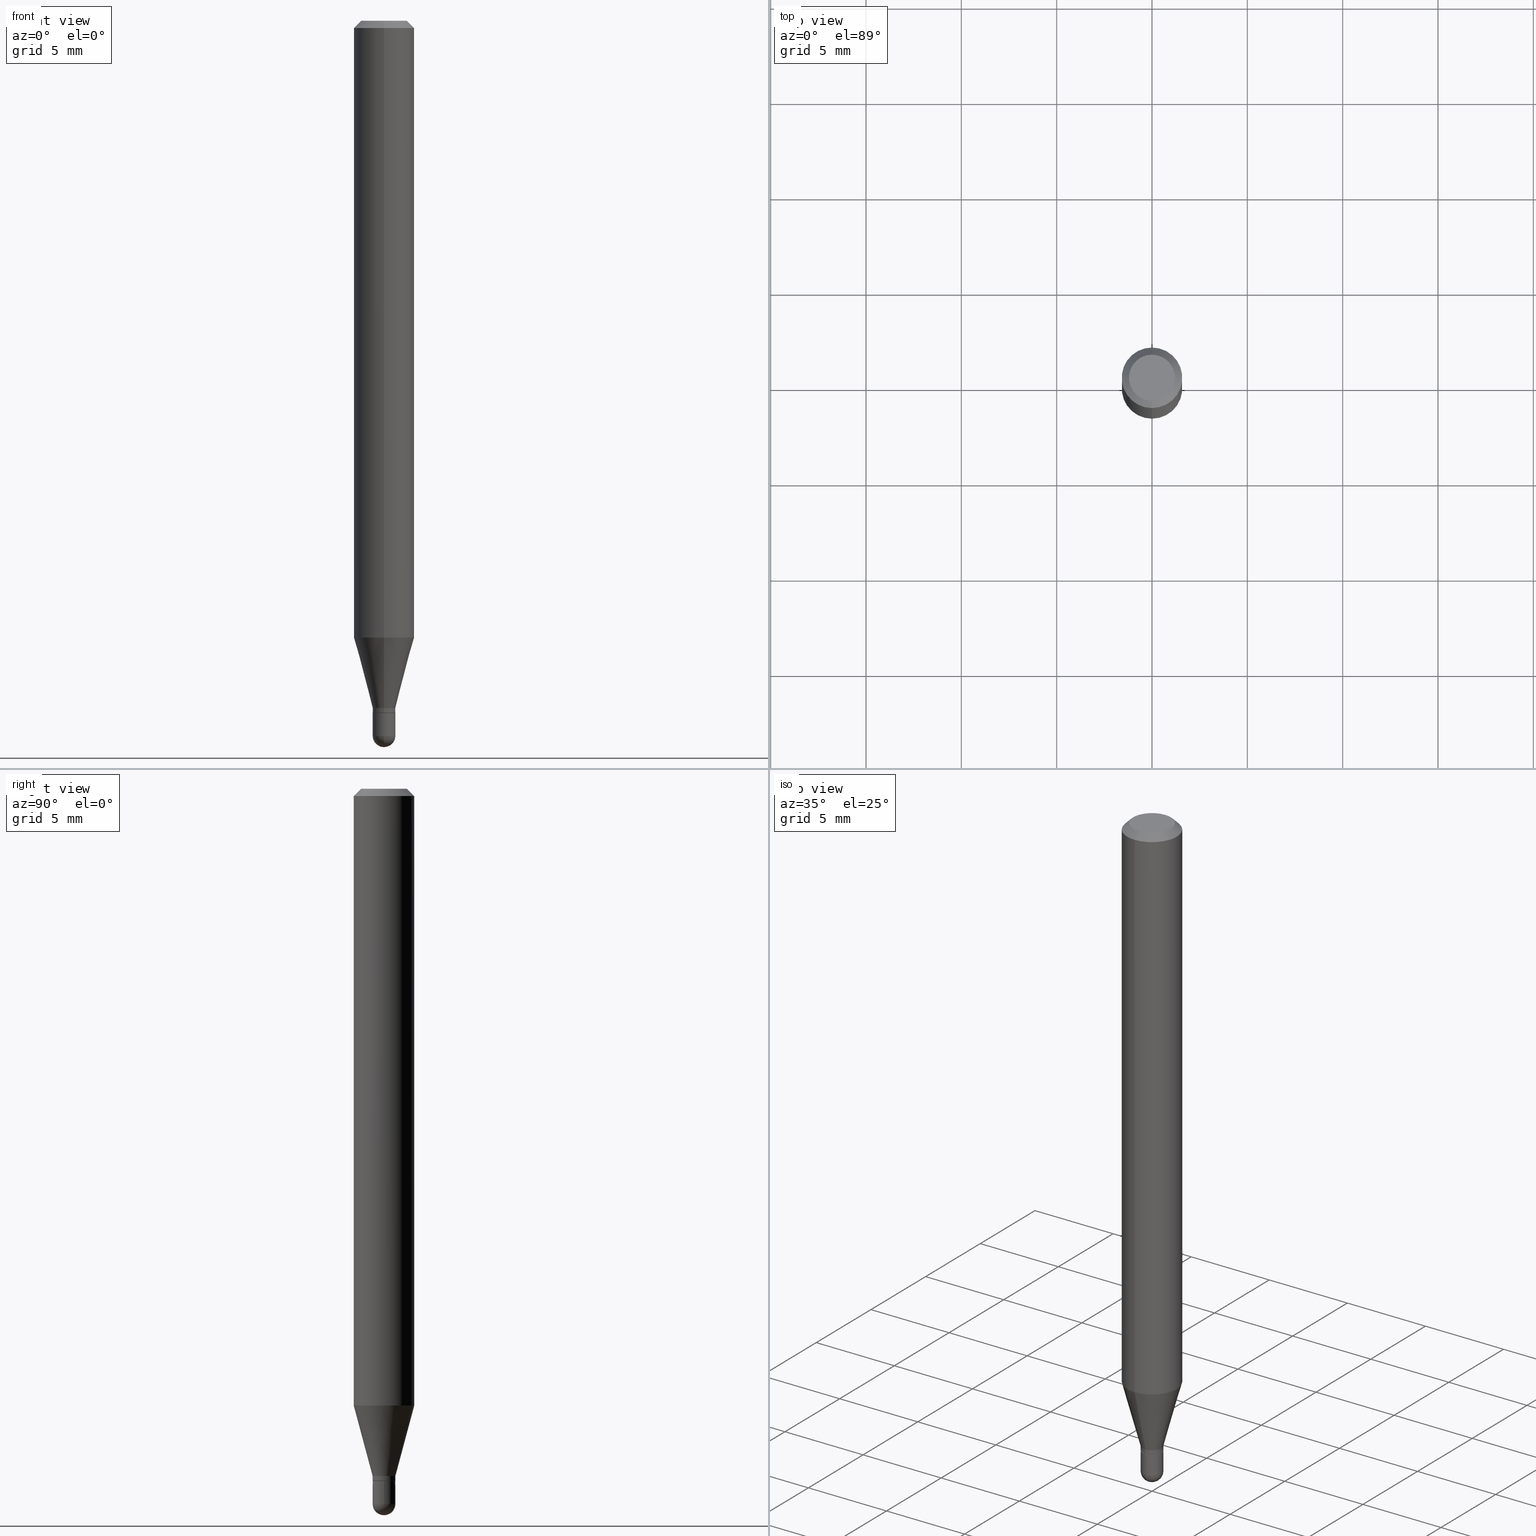
[diagram: canonical four-view strip — front | top / right | iso, engineering-drawing reading convention]
A machine part, canonical four-view strip (front | top / right | iso — engineering-drawing reading convention). The complete STEP part file that produces these views, byte-faithful:
ISO-10303-21;
HEADER;
FILE_DESCRIPTION (( 'STEP AP203' ),
    '1' );
FILE_NAME ('00711.STEP',
    '2024-03-07T18:05:18',
    ( '' ),
    ( '' ),
    'SwSTEP 2.0',
    'SolidWorks 2023',
    '' );
FILE_SCHEMA (( 'CONFIG_CONTROL_DESIGN' ));
ENDSEC;

DATA;
#1 = ORIENTED_EDGE ( 'NONE', *, *, #264, .F. ) ;
#2 = CALENDAR_DATE ( 2024, 7, 3 ) ;
#3 = CARTESIAN_POINT ( 'NONE',  ( 3.840629472727447874E-16, 0.04749999999999999362, -1.747056831868805136E-16 ) ) ;
#4 = DATE_AND_TIME ( #119, #289 ) ;
#5 = DIRECTION ( 'NONE',  ( -2.445455239514301425E-29, 3.491500767087948658E-15, 1.000000000000000000 ) ) ;
#6 = CIRCLE ( 'NONE', #202, 0.02299999999999999961 ) ;
#7 = AXIS2_PLACEMENT_3D ( 'NONE', #145, #105, #147 ) ;
#8 = DATE_AND_TIME ( #2, #228 ) ;
#9 = CARTESIAN_POINT ( 'NONE',  ( -3.773273898774340269E-16, -0.04749999999999999362, 1.569868896864746099E-16 ) ) ;
#10 = DIRECTION ( 'NONE',  ( -2.445455239514301425E-29, 3.491500767087948658E-15, 1.000000000000000000 ) ) ;
#11 = ADVANCED_FACE ( 'NONE', ( #311 ), #115, .T. ) ;
#12 = AXIS2_PLACEMENT_3D ( 'NONE', #163, #40, #122 ) ;
#13 = AXIS2_PLACEMENT_3D ( 'NONE', #25, #345, #501 ) ;
#14 = CYLINDRICAL_SURFACE ( 'NONE', #478, 0.06250000000000000000 ) ;
#15 = ORIENTED_EDGE ( 'NONE', *, *, #333, .F. ) ;
#16 = PRODUCT_DEFINITION ( 'UNKNOWN', '', #46, #400 ) ;
#17 = LINE ( 'NONE', #19, #410 ) ;
#18 = ORIENTED_EDGE ( 'NONE', *, *, #406, .F. ) ;
#19 = CARTESIAN_POINT ( 'NONE',  ( -4.364351673553916201E-16, -0.06250000000000000000, 2.182187979429967912E-16 ) ) ;
#20 = EDGE_CURVE ( 'NONE', #134, #387, #468, .T. ) ;
#21 = AXIS2_PLACEMENT_3D ( 'NONE', #388, #383, #463 ) ;
#22 = CARTESIAN_POINT ( 'NONE',  ( 3.610734692332355557E-29, -5.155172196801905931E-15, -1.476500000000000590 ) ) ;
#23 = CC_DESIGN_PERSON_AND_ORGANIZATION_ASSIGNMENT ( #240, #279, ( #46 ) ) ;
#24 = DIRECTION ( 'NONE',  ( -2.445455239514301425E-29, 3.491500767087948658E-15, 1.000000000000000000 ) ) ;
#25 = CARTESIAN_POINT ( 'NONE',  ( 3.470100984870794187E-29, -4.954439588497799171E-15, -1.419000000000000039 ) ) ;
#26 = ORIENTED_EDGE ( 'NONE', *, *, #215, .F. ) ;
#27 = ADVANCED_FACE ( 'NONE', ( #49 ), #354, .F. ) ;
#28 = DIRECTION ( 'NONE',  ( 2.438088387897960049E-29, -3.491481338843145188E-15, -1.000000000000000000 ) ) ;
#29 = CIRCLE ( 'NONE', #118, 0.02350000000000000352 ) ;
#30 = EDGE_LOOP ( 'NONE', ( #462, #467, #18, #234 ) ) ;
#31 = DIRECTION ( 'NONE',  ( 1.000000000000000000, -6.982962677686265922E-15, 4.883557194083112340E-29 ) ) ;
#32 = ORIENTED_EDGE ( 'NONE', *, *, #20, .T. ) ;
#33 = DIRECTION ( 'NONE',  ( -2.445468806185136597E-29, 3.491481338843145583E-15, 1.000000000000000000 ) ) ;
#34 = ORIENTED_EDGE ( 'NONE', *, *, #333, .T. ) ;
#35 =( LENGTH_UNIT ( ) NAMED_UNIT ( * ) SI_UNIT ( $, .METRE. ) );
#36 = ORIENTED_EDGE ( 'NONE', *, *, #68, .F. ) ;
#37 = VECTOR ( 'NONE', #331, 39.37007874015748143 ) ;
#38 = EDGE_CURVE ( 'NONE', #496, #134, #434, .T. ) ;
#39 = VECTOR ( 'NONE', #347, 39.37007874015748143 ) ;
#40 = DIRECTION ( 'NONE',  ( -2.445455239514301425E-29, 3.491500767087948658E-15, 1.000000000000000000 ) ) ;
#41 = PERSON_AND_ORGANIZATION ( #339, #178 ) ;
#42 = DIRECTION ( 'NONE',  ( -2.445455239514301425E-29, 3.491500767087948658E-15, 1.000000000000000000 ) ) ;
#43 = ADVANCED_FACE ( 'NONE', ( #272 ), #277, .T. ) ;
#44 = DIRECTION ( 'NONE',  ( -6.982962677686266711E-15, -1.000000000000000000, 0.000000000000000000 ) ) ;
#45 = CIRCLE ( 'NONE', #332, 0.02349999999999992373 ) ;
#46 = PRODUCT_DEFINITION_FORMATION_WITH_SPECIFIED_SOURCE ( 'ANY', '', #364, .NOT_KNOWN. ) ;
#47 = PERSON_AND_ORGANIZATION_ROLE ( 'design_supplier' ) ;
#48 = ADVANCED_FACE ( 'NONE', ( #432 ), #404, .T. ) ;
#49 = FACE_OUTER_BOUND ( 'NONE', #65, .T. ) ;
#50 = APPLICATION_CONTEXT ( 'configuration controlled 3d designs of mechanical parts and assemblies' ) ;
#51 = DIRECTION ( 'NONE',  ( 1.839019923739601104E-15, 0.2588190451025250693, 0.9659258262890670910 ) ) ;
#52 = EDGE_CURVE ( 'NONE', #496, #346, #210, .T. ) ;
#53 = CARTESIAN_POINT ( 'NONE',  ( 3.668182859271454205E-31, -5.237251150631926020E-17, -0.01500000000000000812 ) ) ;
#54 = AXIS2_PLACEMENT_3D ( 'NONE', #438, #206, #363 ) ;
#55 = DIRECTION ( 'NONE',  ( 4.937700262164548042E-15, 0.7071067811865451302, -0.7071067811865499042 ) ) ;
#56 = LINE ( 'NONE', #323, #447 ) ;
#57 = SHAPE_DEFINITION_REPRESENTATION ( #329, #456 ) ;
#58 = EDGE_CURVE ( 'NONE', #263, #120, #502, .T. ) ;
#59 = CARTESIAN_POINT ( 'NONE',  ( 3.493332809646180451E-29, -4.987608845785135130E-15, -1.428500000000000325 ) ) ;
#60 = EDGE_LOOP ( 'NONE', ( #430, #188 ) ) ;
#61 = AXIS2_PLACEMENT_3D ( 'NONE', #136, #370, #126 ) ;
#62 = LOCAL_TIME ( 13, 5, 18.00000000000000000, #443 ) ;
#63 = CARTESIAN_POINT ( 'NONE',  ( 1.634248292248579471E-16, 0.02299999999999501055, -1.429000000000000270 ) ) ;
#64 = DIRECTION ( 'NONE',  ( 1.000000000000000000, -6.982962677686269866E-15, 0.000000000000000000 ) ) ;
#65 = EDGE_LOOP ( 'NONE', ( #94, #293 ) ) ;
#66 = DIRECTION ( 'NONE',  ( -2.445468806185136597E-29, 3.491481338843145583E-15, 1.000000000000000000 ) ) ;
#67 = ORIENTED_EDGE ( 'NONE', *, *, #231, .T. ) ;
#68 = EDGE_CURVE ( 'NONE', #256, #286, #84, .T. ) ;
#69 = CYLINDRICAL_SURFACE ( 'NONE', #21, 0.02349999999999992373 ) ;
#70 = SECURITY_CLASSIFICATION ( '', '', #205 ) ;
#71 = VERTEX_POINT ( 'NONE', #9 ) ;
#72 = DIRECTION ( 'NONE',  ( -6.982962677686265133E-15, -1.000000000000000000, 0.000000000000000000 ) ) ;
#73 = VERTEX_POINT ( 'NONE', #241 ) ;
#74 = VERTEX_POINT ( 'NONE', #477 ) ;
#75 = CARTESIAN_POINT ( 'NONE',  ( 4.440892098500625669E-16, 0.06250000000000000000, -2.182187979429967912E-16 ) ) ;
#76 = AXIS2_PLACEMENT_3D ( 'NONE', #223, #265, #72 ) ;
#77 = COORDINATED_UNIVERSAL_TIME_OFFSET ( 5, 0, .BEHIND. ) ;
#78 = ORIENTED_EDGE ( 'NONE', *, *, #278, .T. ) ;
#79 = ADVANCED_FACE ( 'NONE', ( #316 ), #267, .T. ) ;
#80 = DATE_AND_TIME ( #238, #439 ) ;
#81 = DIRECTION ( 'NONE',  ( -6.982962677686265922E-15, -1.000000000000000000, 4.370956789862821150E-15 ) ) ;
#82 = ADVANCED_FACE ( 'NONE', ( #483 ), #196, .T. ) ;
#83 = CARTESIAN_POINT ( 'NONE',  ( 3.608725051552783518E-29, -5.158050116779901582E-15, -1.476500000000000146 ) ) ;
#84 = CIRCLE ( 'NONE', #131, 0.02350000000000000352 ) ;
#85 = AXIS2_PLACEMENT_3D ( 'NONE', #418, #181, #294 ) ;
#86 = DIRECTION ( 'NONE',  ( -6.982962677686266711E-15, -1.000000000000000000, 3.491500767087948658E-15 ) ) ;
#87 = CYLINDRICAL_SURFACE ( 'NONE', #458, 0.06250000000000000000 ) ;
#88 = CARTESIAN_POINT ( 'NONE',  ( 1.640996229256631944E-16, 0.02349999999999482017, -1.476500000000000590 ) ) ;
#89 = EDGE_LOOP ( 'NONE', ( #506, #498, #378, #26 ) ) ;
#90 = AXIS2_PLACEMENT_3D ( 'NONE', #357, #203, #239 ) ;
#91 = AXIS2_PLACEMENT_3D ( 'NONE', #310, #201, #480 ) ;
#92 = DATE_TIME_ROLE ( 'classification_date' ) ;
#93 = DIRECTION ( 'NONE',  ( -2.445468806185136597E-29, 3.491481338843145583E-15, 1.000000000000000000 ) ) ;
#94 = ORIENTED_EDGE ( 'NONE', *, *, #382, .T. ) ;
#95 = CALENDAR_DATE ( 2024, 7, 3 ) ;
#96 = LINE ( 'NONE', #128, #37 ) ;
#97 = ORIENTED_EDGE ( 'NONE', *, *, #52, .F. ) ;
#98 = DIRECTION ( 'NONE',  ( -6.982962677686265133E-15, -1.000000000000000000, 0.000000000000000000 ) ) ;
#99 = AXIS2_PLACEMENT_3D ( 'NONE', #408, #160, #237 ) ;
#100 = CIRCLE ( 'NONE', #85, 0.04749999999999999362 ) ;
#101 = FACE_OUTER_BOUND ( 'NONE', #174, .T. ) ;
#102 = ORIENTED_EDGE ( 'NONE', *, *, #190, .F. ) ;
#103 = DIRECTION ( 'NONE',  ( 1.000000000000000000, -6.982962677686265922E-15, 4.876176775795935793E-29 ) ) ;
#104 = EDGE_LOOP ( 'NONE', ( #504, #309, #36, #300, #295 ) ) ;
#105 = DIRECTION ( 'NONE',  ( -2.445468806185136597E-29, 3.491481338843145583E-15, 1.000000000000000000 ) ) ;
#106 = EDGE_LOOP ( 'NONE', ( #509, #417, #230, #97 ) ) ;
#107 = EDGE_CURVE ( 'NONE', #71, #111, #288, .T. ) ;
#108 = CIRCLE ( 'NONE', #61, 0.02349999999999992373 ) ;
#109 = DIRECTION ( 'NONE',  ( -6.982962677686265922E-15, -1.000000000000000000, 4.370956789862821150E-15 ) ) ;
#110 = CIRCLE ( 'NONE', #324, 0.02349999999999995148 ) ;
#111 = VERTEX_POINT ( 'NONE', #3 ) ;
#112 = CARTESIAN_POINT ( 'NONE',  ( 3.494555537265937151E-29, -4.989354596168678961E-15, -1.429000000000000270 ) ) ;
#113 = ORIENTED_EDGE ( 'NONE', *, *, #257, .T. ) ;
#114 = APPLICATION_PROTOCOL_DEFINITION ( 'international standard', 'config_control_design', 1994, #441 ) ;
#115 = CYLINDRICAL_SURFACE ( 'NONE', #367, 0.02349999999999992373 ) ;
#116 = ADVANCED_FACE ( 'NONE', ( #280 ), #117, .T. ) ;
#117 = CONICAL_SURFACE ( 'NONE', #54, 0.02299999999999999961, 0.7853981633974739252 ) ;
#118 = AXIS2_PLACEMENT_3D ( 'NONE', #338, #33, #64 ) ;
#119 = CALENDAR_DATE ( 2024, 7, 3 ) ;
#120 = VERTEX_POINT ( 'NONE', #123 ) ;
#121 = COORDINATED_UNIVERSAL_TIME_OFFSET ( 5, 0, .BEHIND. ) ;
#122 = DIRECTION ( 'NONE',  ( -6.982962677686266711E-15, -1.000000000000000000, 3.491500767087949053E-15 ) ) ;
#123 = CARTESIAN_POINT ( 'NONE',  ( -1.669775429035872318E-16, -0.02350000000000513137, -1.476500000000000590 ) ) ;
#124 = VECTOR ( 'NONE', #51, 39.37007874015748143 ) ;
#125 = EDGE_CURVE ( 'NONE', #143, #348, #244, .T. ) ;
#126 = DIRECTION ( 'NONE',  ( -6.982962677686266711E-15, -1.000000000000000000, 0.000000000000000000 ) ) ;
#127 = DATE_AND_TIME ( #95, #283 ) ;
#128 = CARTESIAN_POINT ( 'NONE',  ( -1.606081415867491651E-16, -0.02300000000000499215, -1.429000000000000270 ) ) ;
#129 = ORIENTED_EDGE ( 'NONE', *, *, #379, .F. ) ;
#130 = CARTESIAN_POINT ( 'NONE',  ( 4.440892098500938748E-16, 0.06249999999999995143, -0.01500000000000022669 ) ) ;
#131 = AXIS2_PLACEMENT_3D ( 'NONE', #474, #321, #313 ) ;
#132 = CIRCLE ( 'NONE', #161, 0.02349999999999992373 ) ;
#133 = DIRECTION ( 'NONE',  ( 1.000000000000000000, -6.982962677686269866E-15, 0.000000000000000000 ) ) ;
#134 = VERTEX_POINT ( 'NONE', #130 ) ;
#135 = CC_DESIGN_PERSON_AND_ORGANIZATION_ASSIGNMENT ( #482, #356, ( #364 ) ) ;
#136 = CARTESIAN_POINT ( 'NONE',  ( 3.470100984870794187E-29, -4.954439588497799171E-15, -1.419000000000000039 ) ) ;
#137 = ORIENTED_EDGE ( 'NONE', *, *, #253, .T. ) ;
#138 = CARTESIAN_POINT ( 'NONE',  ( -4.364351673553606573E-16, -0.06250000000000446865, -1.273450018504813874 ) ) ;
#139 = VERTEX_POINT ( 'NONE', #252 ) ;
#140 = CLOSED_SHELL ( 'NONE', ( #299, #43, #419, #82, #473 ) ) ;
#141 = AXIS2_PLACEMENT_3D ( 'NONE', #221, #24, #109 ) ;
#142 = CARTESIAN_POINT ( 'NONE',  ( -0.02350000000000000352, 1.669775429036235687E-16, -1.155949746209903035E-30 ) ) ;
#143 = VERTEX_POINT ( 'NONE', #88 ) ;
#144 = MANIFOLD_SOLID_BREP ( 'Body-Move/Copy2[1]', #140 ) ;
#145 = CARTESIAN_POINT ( 'NONE',  ( 0.000000000000000000, 0.000000000000000000, 0.000000000000000000 ) ) ;
#146 = ORIENTED_EDGE ( 'NONE', *, *, #489, .T. ) ;
#147 = DIRECTION ( 'NONE',  ( 1.000000000000000000, -6.982962677686265922E-15, 4.876176775795935793E-29 ) ) ;
#148 = EDGE_LOOP ( 'NONE', ( #271, #146, #211, #472 ) ) ;
#149 = EDGE_CURVE ( 'NONE', #460, #226, #96, .T. ) ;
#150 = DIRECTION ( 'NONE',  ( 1.000000000000000000, -6.982962677686269866E-15, 0.000000000000000000 ) ) ;
#151 = AXIS2_PLACEMENT_3D ( 'NONE', #177, #499, #103 ) ;
#152 = ORIENTED_EDGE ( 'NONE', *, *, #489, .F. ) ;
#153 = DIRECTION ( 'NONE',  ( -2.445468806185136597E-29, 3.491481338843145583E-15, 1.000000000000000000 ) ) ;
#154 = DIRECTION ( 'NONE',  ( -2.445455239514301425E-29, 3.491500767087948658E-15, 1.000000000000000000 ) ) ;
#155 =( NAMED_UNIT ( * ) SI_UNIT ( $, .STERADIAN. ) SOLID_ANGLE_UNIT ( ) );
#156 = CARTESIAN_POINT ( 'NONE',  ( 3.608725051552783518E-29, -5.158050116779901582E-15, -1.476500000000000146 ) ) ;
#157 = UNCERTAINTY_MEASURE_WITH_UNIT (LENGTH_MEASURE( 1.000000000000000082E-05 ), #485, 'distance_accuracy_value', 'NONE');
#158 = APPROVAL_DATE_TIME ( #4, #373 ) ;
#159 = AXIS2_PLACEMENT_3D ( 'NONE', #371, #168, #488 ) ;
#160 = DIRECTION ( 'NONE',  ( 2.445455239514301425E-29, -3.491500767087948658E-15, -1.000000000000000000 ) ) ;
#161 = AXIS2_PLACEMENT_3D ( 'NONE', #424, #426, #298 ) ;
#162 = LENGTH_MEASURE_WITH_UNIT ( LENGTH_MEASURE( 0.02539999999999999897 ), #35 );
#163 = CARTESIAN_POINT ( 'NONE',  ( 2.166525820171981460E-46, -3.093259054927012683E-32, -8.859396750202964194E-18 ) ) ;
#164 = EDGE_CURVE ( 'NONE', #387, #134, #227, .T. ) ;
#165 = APPROVAL_DATE_TIME ( #80, #366 ) ;
#166 = DIRECTION ( 'NONE',  ( -2.445455239514301425E-29, 3.491500767087948658E-15, 1.000000000000000000 ) ) ;
#167 = COORDINATED_UNIVERSAL_TIME_OFFSET ( 5, 0, .BEHIND. ) ;
#168 = DIRECTION ( 'NONE',  ( 2.445455239514301425E-29, -3.491500767087948658E-15, -1.000000000000000000 ) ) ;
#169 = VECTOR ( 'NONE', #166, 39.37007874015748143 ) ;
#170 = VECTOR ( 'NONE', #236, 39.37007874015748143 ) ;
#171 = DIRECTION ( 'NONE',  ( -2.445455239514301425E-29, 3.491500767087948658E-15, 1.000000000000000000 ) ) ;
#172 = ADVANCED_FACE ( 'NONE', ( #495 ), #14, .T. ) ;
#173 = CARTESIAN_POINT ( 'NONE',  ( -1.640996229255923448E-16, -0.02350000000000499259, -1.428500000000000325 ) ) ;
#174 = EDGE_LOOP ( 'NONE', ( #511, #191 ) ) ;
#175 = PERSON_AND_ORGANIZATION ( #339, #178 ) ;
#176 = CC_DESIGN_PERSON_AND_ORGANIZATION_ASSIGNMENT ( #401, #47, ( #46 ) ) ;
#177 = CARTESIAN_POINT ( 'NONE',  ( 0.000000000000000000, 0.000000000000000000, 0.000000000000000000 ) ) ;
#178 = ORGANIZATION ( 'UNSPECIFIED', 'UNSPECIFIED', '' ) ;
#179 = PERSON_AND_ORGANIZATION_ROLE ( 'classification_officer' ) ;
#180 = DIRECTION ( 'NONE',  ( -2.445468806185136877E-29, 3.491481338843145188E-15, 1.000000000000000000 ) ) ;
#181 = DIRECTION ( 'NONE',  ( -2.445455239514301425E-29, 3.491500767087948658E-15, 1.000000000000000000 ) ) ;
#182 = ADVANCED_FACE ( 'NONE', ( #208 ), #87, .T. ) ;
#183 = CARTESIAN_POINT ( 'NONE',  ( -0.02350000000000000352, -4.905271972100756875E-15, -1.476500000000000590 ) ) ;
#184 = ORIENTED_EDGE ( 'NONE', *, *, #465, .T. ) ;
#185 = VECTOR ( 'NONE', #55, 39.37007874015748143 ) ;
#186 = AXIS2_PLACEMENT_3D ( 'NONE', #466, #66, #150 ) ;
#187 = DIRECTION ( 'NONE',  ( -2.445455239514301425E-29, 3.491500767087948658E-15, 1.000000000000000000 ) ) ;
#188 = ORIENTED_EDGE ( 'NONE', *, *, #412, .F. ) ;
#189 = LINE ( 'NONE', #429, #39 ) ;
#190 = EDGE_CURVE ( 'NONE', #348, #120, #314, .T. ) ;
#191 = ORIENTED_EDGE ( 'NONE', *, *, #319, .T. ) ;
#192 = FACE_OUTER_BOUND ( 'NONE', #106, .T. ) ;
#193 = ORIENTED_EDGE ( 'NONE', *, *, #264, .T. ) ;
#194 = AXIS2_PLACEMENT_3D ( 'NONE', #399, #5, #81 ) ;
#195 = APPLICATION_PROTOCOL_DEFINITION ( 'international standard', 'config_control_design', 1994, #50 ) ;
#196 = SPHERICAL_SURFACE ( 'NONE', #273, 0.02349999999999995148 ) ;
#197 = ADVANCED_FACE ( 'NONE', ( #497 ), #493, .T. ) ;
#198 = DIRECTION ( 'NONE',  ( 6.982962677686265922E-15, 1.000000000000000000, 0.000000000000000000 ) ) ;
#199 = APPROVAL_ROLE ( '' ) ;
#200 = CARTESIAN_POINT ( 'NONE',  ( 0.000000000000000000, 0.000000000000000000, 0.000000000000000000 ) ) ;
#201 = DIRECTION ( 'NONE',  ( 0.000000000000000000, 0.000000000000000000, 1.000000000000000000 ) ) ;
#202 = AXIS2_PLACEMENT_3D ( 'NONE', #250, #10, #98 ) ;
#203 = DIRECTION ( 'NONE',  ( 2.445455239514300865E-29, -3.491500767087948658E-15, -1.000000000000000000 ) ) ;
#204 =( GEOMETRIC_REPRESENTATION_CONTEXT ( 3 ) GLOBAL_UNCERTAINTY_ASSIGNED_CONTEXT ( ( #157 ) ) GLOBAL_UNIT_ASSIGNED_CONTEXT ( ( #485, #320, #155 ) ) REPRESENTATION_CONTEXT ( 'NONE', 'WORKASPACE' ) );
#205 = SECURITY_CLASSIFICATION_LEVEL ( 'unclassified' ) ;
#206 = DIRECTION ( 'NONE',  ( -2.445455239514301425E-29, 3.491500767087948658E-15, 1.000000000000000000 ) ) ;
#207 = CALENDAR_DATE ( 2024, 7, 3 ) ;
#208 = FACE_OUTER_BOUND ( 'NONE', #89, .T. ) ;
#209 = DIRECTION ( 'NONE',  ( -2.445455239514301425E-29, 3.491500767087948658E-15, 1.000000000000000000 ) ) ;
#210 = CIRCLE ( 'NONE', #194, 0.06250000000000000000 ) ;
#211 = ORIENTED_EDGE ( 'NONE', *, *, #164, .T. ) ;
#212 = AXIS2_PLACEMENT_3D ( 'NONE', #342, #28, #422 ) ;
#213 = EDGE_CURVE ( 'NONE', #224, #256, #285, .T. ) ;
#214 = DIRECTION ( 'NONE',  ( -1.807323732225330928E-15, -0.2588190451025182970, 0.9659258262890689783 ) ) ;
#215 = EDGE_CURVE ( 'NONE', #346, #387, #17, .T. ) ;
#216 = CARTESIAN_POINT ( 'NONE',  ( 0.02350000000000000352, -5.153426456132483639E-15, -1.429000000000000270 ) ) ;
#217 = PERSON_AND_ORGANIZATION ( #339, #178 ) ;
#218 = DIRECTION ( 'NONE',  ( -6.982962677686266711E-15, -1.000000000000000000, 0.000000000000000000 ) ) ;
#219 = ORIENTED_EDGE ( 'NONE', *, *, #379, .T. ) ;
#220 = CC_DESIGN_APPROVAL ( #366, ( #16 ) ) ;
#221 = CARTESIAN_POINT ( 'NONE',  ( 3.114165020012181903E-29, -4.446251716457720788E-15, -1.273450018504814096 ) ) ;
#222 = PRODUCT_RELATED_PRODUCT_CATEGORY ( 'detail', '', ( #364 ) ) ;
#223 = CARTESIAN_POINT ( 'NONE',  ( 3.494555537265937151E-29, -4.989354596168678961E-15, -1.429000000000000270 ) ) ;
#224 = VERTEX_POINT ( 'NONE', #255 ) ;
#225 = FACE_OUTER_BOUND ( 'NONE', #261, .T. ) ;
#226 = VERTEX_POINT ( 'NONE', #173 ) ;
#227 = CIRCLE ( 'NONE', #393, 0.06250000000000000000 ) ;
#228 = LOCAL_TIME ( 13, 5, 18.00000000000000000, #353 ) ;
#229 = CARTESIAN_POINT ( 'NONE',  ( 3.608725051552783518E-29, -5.158050116779901582E-15, -1.476500000000000146 ) ) ;
#230 = ORIENTED_EDGE ( 'NONE', *, *, #249, .T. ) ;
#231 = EDGE_CURVE ( 'NONE', #111, #134, #326, .T. ) ;
#232 = DIRECTION ( 'NONE',  ( 5.024295867788190974E-15, 0.7071067811865681119, 0.7071067811865270336 ) ) ;
#233 = EDGE_LOOP ( 'NONE', ( #15, #350, #304, #427 ) ) ;
#234 = ORIENTED_EDGE ( 'NONE', *, *, #508, .F. ) ;
#235 = AXIS2_PLACEMENT_3D ( 'NONE', #22, #93, #133 ) ;
#236 = DIRECTION ( 'NONE',  ( -4.851104656540964275E-15, -0.7071067811865500152, -0.7071067811865450192 ) ) ;
#237 = DIRECTION ( 'NONE',  ( 6.982962677686265922E-15, 1.000000000000000000, -3.483106191921935554E-15 ) ) ;
#238 = CALENDAR_DATE ( 2024, 7, 3 ) ;
#239 = DIRECTION ( 'NONE',  ( 6.982962677686265922E-15, 1.000000000000000000, -3.491500767087948658E-15 ) ) ;
#240 = PERSON_AND_ORGANIZATION ( #339, #178 ) ;
#241 = CARTESIAN_POINT ( 'NONE',  ( -1.640996229255920244E-16, -0.02350000000000488157, -1.419000000000000039 ) ) ;
#242 = ADVANCED_FACE ( 'NONE', ( #490 ), #454, .F. ) ;
#243 = DATE_TIME_ROLE ( 'creation_date' ) ;
#244 = CIRCLE ( 'NONE', #358, 0.02350000000000000352 ) ;
#245 = DIRECTION ( 'NONE',  ( -1.000000000000000000, 7.105427357601001070E-15, -4.926315508542082329E-29 ) ) ;
#246 = CC_DESIGN_DATE_AND_TIME_ASSIGNMENT ( #127, #92, ( #70 ) ) ;
#247 = CARTESIAN_POINT ( 'NONE',  ( 3.668182859271454205E-31, -5.237251150631926020E-17, -0.01500000000000000812 ) ) ;
#248 = DIRECTION ( 'NONE',  ( -6.982962677686265922E-15, -1.000000000000000000, 3.491500767087948658E-15 ) ) ;
#249 = EDGE_CURVE ( 'NONE', #73, #346, #56, .T. ) ;
#250 = CARTESIAN_POINT ( 'NONE',  ( 3.494555537265937151E-29, -4.989354596168678961E-15, -1.429000000000000270 ) ) ;
#251 = ORIENTED_EDGE ( 'NONE', *, *, #319, .F. ) ;
#252 = CARTESIAN_POINT ( 'NONE',  ( 1.669775429036573418E-16, 0.02349999999999485834, -1.428500000000000325 ) ) ;
#253 = EDGE_CURVE ( 'NONE', #460, #372, #6, .T. ) ;
#254 = DATE_AND_TIME ( #207, #62 ) ;
#255 = CARTESIAN_POINT ( 'NONE',  ( 0.02350000000000000352, -5.236349137930008608E-15, -1.476500000000000590 ) ) ;
#256 = VERTEX_POINT ( 'NONE', #216 ) ;
#257 = EDGE_CURVE ( 'NONE', #139, #226, #45, .T. ) ;
#258 = CARTESIAN_POINT ( 'NONE',  ( 0.000000000000000000, 0.000000000000000000, 0.000000000000000000 ) ) ;
#259 = AXIS2_PLACEMENT_3D ( 'NONE', #83, #245, #402 ) ;
#260 = PLANE ( 'NONE',  #212 ) ;
#261 = EDGE_LOOP ( 'NONE', ( #219, #184, #1, #453 ) ) ;
#262 = CYLINDRICAL_SURFACE ( 'NONE', #7, 0.02350000000000000352 ) ;
#263 = VERTEX_POINT ( 'NONE', #284 ) ;
#264 = EDGE_CURVE ( 'NONE', #73, #74, #108, .T. ) ;
#265 = DIRECTION ( 'NONE',  ( -2.445455239514301425E-29, 3.491500767087948658E-15, 1.000000000000000000 ) ) ;
#266 = EDGE_LOOP ( 'NONE', ( #269, #425, #336, #500 ) ) ;
#267 = CONICAL_SURFACE ( 'NONE', #375, 0.02349999999999992373, 0.2617993877991502960 ) ;
#268 = DIRECTION ( 'NONE',  ( -2.445468806185136877E-29, 3.491481338843145188E-15, 1.000000000000000000 ) ) ;
#269 = ORIENTED_EDGE ( 'NONE', *, *, #38, .F. ) ;
#270 = APPROVAL_STATUS ( 'not_yet_approved' ) ;
#271 = ORIENTED_EDGE ( 'NONE', *, *, #107, .F. ) ;
#272 = FACE_OUTER_BOUND ( 'NONE', #343, .T. ) ;
#273 = AXIS2_PLACEMENT_3D ( 'NONE', #318, #396, #486 ) ;
#274 = CONICAL_SURFACE ( 'NONE', #351, 0.02299999999999999961, 0.7853981633974739252 ) ;
#275 = ORIENTED_EDGE ( 'NONE', *, *, #190, .T. ) ;
#276 = LINE ( 'NONE', #312, #170 ) ;
#277 = SPHERICAL_SURFACE ( 'NONE', #305, 0.02349999999999995148 ) ;
#278 = EDGE_CURVE ( 'NONE', #74, #496, #374, .T. ) ;
#279 = PERSON_AND_ORGANIZATION_ROLE ( 'creator' ) ;
#280 = FACE_OUTER_BOUND ( 'NONE', #233, .T. ) ;
#281 = AXIS2_PLACEMENT_3D ( 'NONE', #290, #416, #248 ) ;
#282 = CARTESIAN_POINT ( 'NONE',  ( 3.610734692332355557E-29, -5.155172196801905931E-15, -1.476500000000000590 ) ) ;
#283 = LOCAL_TIME ( 13, 5, 18.00000000000000000, #167 ) ;
#284 = CARTESIAN_POINT ( 'NONE',  ( 3.667198388887920277E-29, -5.238660968253717186E-15, -1.500000000000000222 ) ) ;
#285 = LINE ( 'NONE', #442, #296 ) ;
#286 = VERTEX_POINT ( 'NONE', #409 ) ;
#287 = DIRECTION ( 'NONE',  ( -6.982962677686265922E-15, -1.000000000000000000, 3.483106191921935554E-15 ) ) ;
#288 = CIRCLE ( 'NONE', #12, 0.04749999999999999362 ) ;
#289 = LOCAL_TIME ( 13, 5, 18.00000000000000000, #121 ) ;
#290 = CARTESIAN_POINT ( 'NONE',  ( 3.494555537265937151E-29, -4.989354596168678961E-15, -1.429000000000000270 ) ) ;
#291 = ORIENTED_EDGE ( 'NONE', *, *, #414, .F. ) ;
#292 = FACE_OUTER_BOUND ( 'NONE', #104, .T. ) ;
#293 = ORIENTED_EDGE ( 'NONE', *, *, #107, .T. ) ;
#294 = DIRECTION ( 'NONE',  ( -6.982962677686266711E-15, -1.000000000000000000, 3.491500767087949053E-15 ) ) ;
#295 = ORIENTED_EDGE ( 'NONE', *, *, #406, .T. ) ;
#296 = VECTOR ( 'NONE', #180, 39.37007874015748143 ) ;
#297 = VECTOR ( 'NONE', #268, 39.37007874015748143 ) ;
#298 = DIRECTION ( 'NONE',  ( -6.982962677686266711E-15, -1.000000000000000000, 0.000000000000000000 ) ) ;
#299 = ADVANCED_FACE ( 'NONE', ( #292 ), #492, .T. ) ;
#300 = ORIENTED_EDGE ( 'NONE', *, *, #213, .F. ) ;
#301 = DIRECTION ( 'NONE',  ( -2.445455239514301425E-29, 3.491500767087948658E-15, 1.000000000000000000 ) ) ;
#302 = EDGE_LOOP ( 'NONE', ( #193, #78, #446, #381 ) ) ;
#303 = LINE ( 'NONE', #142, #297 ) ;
#304 = ORIENTED_EDGE ( 'NONE', *, *, #149, .T. ) ;
#305 = AXIS2_PLACEMENT_3D ( 'NONE', #156, #436, #198 ) ;
#306 = CIRCLE ( 'NONE', #141, 0.06250000000000000000 ) ;
#307 = MANIFOLD_SOLID_BREP ( 'Body-Move/Copy2[2]', #385 ) ;
#308 = FACE_OUTER_BOUND ( 'NONE', #334, .T. ) ;
#309 = ORIENTED_EDGE ( 'NONE', *, *, #451, .T. ) ;
#310 = CARTESIAN_POINT ( 'NONE',  ( 0.000000000000000000, 0.000000000000000000, 0.000000000000000000 ) ) ;
#311 = FACE_OUTER_BOUND ( 'NONE', #423, .T. ) ;
#312 = CARTESIAN_POINT ( 'NONE',  ( -4.287811248607203282E-16, -0.06250000000000005551, -0.01499999999999979128 ) ) ;
#313 = DIRECTION ( 'NONE',  ( 1.000000000000000000, -6.982962677686269866E-15, 0.000000000000000000 ) ) ;
#314 = CIRCLE ( 'NONE', #235, 0.02350000000000000352 ) ;
#315 = APPROVAL_STATUS ( 'not_yet_approved' ) ;
#316 = FACE_OUTER_BOUND ( 'NONE', #302, .T. ) ;
#317 = PERSON_AND_ORGANIZATION ( #339, #178 ) ;
#318 = CARTESIAN_POINT ( 'NONE',  ( 3.608725051552783518E-29, -5.158050116779901582E-15, -1.476500000000000146 ) ) ;
#319 = EDGE_CURVE ( 'NONE', #286, #256, #344, .T. ) ;
#320 =( NAMED_UNIT ( * ) PLANE_ANGLE_UNIT ( ) SI_UNIT ( $, .RADIAN. ) );
#321 = DIRECTION ( 'NONE',  ( -2.445468806185136597E-29, 3.491481338843145583E-15, 1.000000000000000000 ) ) ;
#322 = EDGE_CURVE ( 'NONE', #226, #73, #386, .T. ) ;
#323 = CARTESIAN_POINT ( 'NONE',  ( -1.640996229255920244E-16, -0.02350000000000488157, -1.419000000000000039 ) ) ;
#324 = AXIS2_PLACEMENT_3D ( 'NONE', #229, #31, #507 ) ;
#325 = APPROVAL_DATE_TIME ( #254, #389 ) ;
#326 = LINE ( 'NONE', #365, #185 ) ;
#327 = APPROVAL_STATUS ( 'not_yet_approved' ) ;
#328 = CARTESIAN_POINT ( 'NONE',  ( 1.669775429036576870E-16, 0.02349999999999496936, -1.419000000000000039 ) ) ;
#329 = PRODUCT_DEFINITION_SHAPE ( 'NONE', 'NONE',  #16 ) ;
#330 = ORIENTED_EDGE ( 'NONE', *, *, #445, .F. ) ;
#331 = DIRECTION ( 'NONE',  ( -4.937700262164674260E-15, -0.7071067811865632269, 0.7071067811865319186 ) ) ;
#332 = AXIS2_PLACEMENT_3D ( 'NONE', #59, #444, #218 ) ;
#333 = EDGE_CURVE ( 'NONE', #372, #139, #471, .T. ) ;
#334 = EDGE_LOOP ( 'NONE', ( #137, #34, #129, #455 ) ) ;
#335 = DIRECTION ( 'NONE',  ( 1.000000000000000000, -6.982962677686269866E-15, 0.000000000000000000 ) ) ;
#336 = ORIENTED_EDGE ( 'NONE', *, *, #215, .T. ) ;
#337 = CC_DESIGN_PERSON_AND_ORGANIZATION_ASSIGNMENT ( #360, #398, ( #16 ) ) ;
#338 = CARTESIAN_POINT ( 'NONE',  ( 3.610734692332355557E-29, -5.155172196801905931E-15, -1.476500000000000590 ) ) ;
#339 = PERSON ( 'UNSPECIFIED', 'UNSPECIFIED', 'UNSPECIFIED', ('UNSPECIFIED'), ('UNSPECIFIED'), ('UNSPECIFIED') ) ;
#340 = ORIENTED_EDGE ( 'NONE', *, *, #58, .T. ) ;
#341 = ADVANCED_FACE ( 'NONE', ( #308 ), #274, .T. ) ;
#342 = CARTESIAN_POINT ( 'NONE',  ( 1.640996229256622083E-16, 0.02349999999999501099, -1.429000000000000270 ) ) ;
#343 = EDGE_LOOP ( 'NONE', ( #291, #340, #102, #390 ) ) ;
#344 = CIRCLE ( 'NONE', #186, 0.02350000000000000352 ) ;
#345 = DIRECTION ( 'NONE',  ( -2.445455239514301425E-29, 3.491500767087948658E-15, 1.000000000000000000 ) ) ;
#346 = VERTEX_POINT ( 'NONE', #138 ) ;
#347 = DIRECTION ( 'NONE',  ( -2.445455239514301425E-29, 3.491500767087948658E-15, 1.000000000000000000 ) ) ;
#348 = VERTEX_POINT ( 'NONE', #183 ) ;
#349 = CARTESIAN_POINT ( 'NONE',  ( 3.470100984870794187E-29, -4.954439588497799171E-15, -1.419000000000000039 ) ) ;
#350 = ORIENTED_EDGE ( 'NONE', *, *, #412, .T. ) ;
#351 = AXIS2_PLACEMENT_3D ( 'NONE', #112, #187, #377 ) ;
#352 = ORIENTED_EDGE ( 'NONE', *, *, #465, .F. ) ;
#353 = COORDINATED_UNIVERSAL_TIME_OFFSET ( 5, 0, .BEHIND. ) ;
#354 = PLANE ( 'NONE',  #90 ) ;
#355 = EDGE_CURVE ( 'NONE', #346, #496, #306, .T. ) ;
#356 = PERSON_AND_ORGANIZATION_ROLE ( 'design_owner' ) ;
#357 = CARTESIAN_POINT ( 'NONE',  ( 3.316907271900976096E-16, 0.04749999999999999362, -1.702759848117790315E-16 ) ) ;
#358 = AXIS2_PLACEMENT_3D ( 'NONE', #282, #440, #335 ) ;
#359 = CC_DESIGN_SECURITY_CLASSIFICATION ( #70, ( #46 ) ) ;
#360 = PERSON_AND_ORGANIZATION ( #339, #178 ) ;
#361 = CARTESIAN_POINT ( 'NONE',  ( 3.470100984870794187E-29, -4.954439588497799171E-15, -1.419000000000000039 ) ) ;
#362 = DIRECTION ( 'NONE',  ( -6.982962677686266711E-15, -1.000000000000000000, 0.000000000000000000 ) ) ;
#363 = DIRECTION ( 'NONE',  ( -6.982962677686265133E-15, -1.000000000000000000, 0.000000000000000000 ) ) ;
#364 = PRODUCT ( '00711', '00711', '', ( #437 ) ) ;
#365 = CARTESIAN_POINT ( 'NONE',  ( 4.364351673553919652E-16, 0.06249999999999995143, -0.01500000000000022669 ) ) ;
#366 = APPROVAL ( #315, 'UNSPECIFIED' ) ;
#367 = AXIS2_PLACEMENT_3D ( 'NONE', #200, #42, #86 ) ;
#368 = DIRECTION ( 'NONE',  ( -2.445455239514301425E-29, 3.491500767087948658E-15, 1.000000000000000000 ) ) ;
#369 = VECTOR ( 'NONE', #232, 39.37007874015748143 ) ;
#370 = DIRECTION ( 'NONE',  ( -2.445455239514301425E-29, 3.491500767087948658E-15, 1.000000000000000000 ) ) ;
#371 = CARTESIAN_POINT ( 'NONE',  ( 3.668182859271454205E-31, -5.237251150631926020E-17, -0.01500000000000000812 ) ) ;
#372 = VERTEX_POINT ( 'NONE', #510 ) ;
#373 = APPROVAL ( #270, 'UNSPECIFIED' ) ;
#374 = LINE ( 'NONE', #328, #124 ) ;
#375 = AXIS2_PLACEMENT_3D ( 'NONE', #361, #481, #44 ) ;
#376 = CONICAL_SURFACE ( 'NONE', #394, 0.02349999999999992373, 0.2617993877991502960 ) ;
#377 = DIRECTION ( 'NONE',  ( -6.982962677686265133E-15, -1.000000000000000000, 0.000000000000000000 ) ) ;
#378 = ORIENTED_EDGE ( 'NONE', *, *, #164, .F. ) ;
#379 = EDGE_CURVE ( 'NONE', #226, #139, #132, .T. ) ;
#380 = CARTESIAN_POINT ( 'NONE',  ( -1.640996229256267342E-16, -0.02349999999999992373, 8.205026802656652605E-17 ) ) ;
#381 = ORIENTED_EDGE ( 'NONE', *, *, #249, .F. ) ;
#382 = EDGE_CURVE ( 'NONE', #111, #71, #100, .T. ) ;
#383 = DIRECTION ( 'NONE',  ( -2.445455239514301425E-29, 3.491500767087948658E-15, 1.000000000000000000 ) ) ;
#384 = EDGE_LOOP ( 'NONE', ( #431, #275, #491, #392, #251 ) ) ;
#385 = CLOSED_SHELL ( 'NONE', ( #397, #341, #197, #182, #79, #484, #172, #48, #27, #242, #116, #11 ) ) ;
#386 = LINE ( 'NONE', #380, #428 ) ;
#387 = VERTEX_POINT ( 'NONE', #457 ) ;
#388 = CARTESIAN_POINT ( 'NONE',  ( 0.000000000000000000, 0.000000000000000000, 0.000000000000000000 ) ) ;
#389 = APPROVAL ( #327, 'UNSPECIFIED' ) ;
#390 = ORIENTED_EDGE ( 'NONE', *, *, #125, .F. ) ;
#391 = CARTESIAN_POINT ( 'NONE',  ( 4.440892098500934804E-16, 0.06249999999999553135, -1.273450018504814318 ) ) ;
#392 = ORIENTED_EDGE ( 'NONE', *, *, #213, .T. ) ;
#393 = AXIS2_PLACEMENT_3D ( 'NONE', #53, #411, #287 ) ;
#394 = AXIS2_PLACEMENT_3D ( 'NONE', #349, #433, #362 ) ;
#395 = APPROVAL_ROLE ( '' ) ;
#396 = DIRECTION ( 'NONE',  ( -1.000000000000000000, 6.982962677686265922E-15, -4.883557194083111780E-29 ) ) ;
#397 = ADVANCED_FACE ( 'NONE', ( #225 ), #69, .T. ) ;
#398 = PERSON_AND_ORGANIZATION_ROLE ( 'creator' ) ;
#399 = CARTESIAN_POINT ( 'NONE',  ( 3.114165020012181903E-29, -4.446251716457720788E-15, -1.273450018504814096 ) ) ;
#400 = DESIGN_CONTEXT ( 'detailed design', #50, 'design' ) ;
#401 = PERSON_AND_ORGANIZATION ( #339, #178 ) ;
#402 = DIRECTION ( 'NONE',  ( -7.105427357601001070E-15, -1.000000000000000000, 0.000000000000000000 ) ) ;
#403 = DIMENSIONAL_EXPONENTS ( 1.000000000000000000, 0.000000000000000000, 0.000000000000000000, 0.000000000000000000, 0.000000000000000000, 0.000000000000000000, 0.000000000000000000 ) ;
#404 = CONICAL_SURFACE ( 'NONE', #99, 0.06250000000000000000, 0.7853981633974483900 ) ;
#405 = CIRCLE ( 'NONE', #13, 0.02349999999999992373 ) ;
#406 = EDGE_CURVE ( 'NONE', #224, #143, #29, .T. ) ;
#407 = DIRECTION ( 'NONE',  ( -6.982962677686265922E-15, -1.000000000000000000, 3.483106191921935554E-15 ) ) ;
#408 = CARTESIAN_POINT ( 'NONE',  ( 3.668182859271454205E-31, -5.237251150631926020E-17, -0.01500000000000000812 ) ) ;
#409 = CARTESIAN_POINT ( 'NONE',  ( -0.02350000000000000352, -4.905271972100756875E-15, -1.429000000000000270 ) ) ;
#410 = VECTOR ( 'NONE', #171, 39.37007874015748143 ) ;
#411 = DIRECTION ( 'NONE',  ( -2.445455239514301425E-29, 3.491500767087948658E-15, 1.000000000000000000 ) ) ;
#412 = EDGE_CURVE ( 'NONE', #372, #460, #479, .T. ) ;
#413 = DIRECTION ( 'NONE',  ( -6.982962677686265922E-15, -1.000000000000000000, 3.491500767087948658E-15 ) ) ;
#414 = EDGE_CURVE ( 'NONE', #263, #143, #110, .T. ) ;
#415 = APPROVAL_ROLE ( '' ) ;
#416 = DIRECTION ( 'NONE',  ( -2.445455239514300865E-29, 3.491500767087948658E-15, 1.000000000000000000 ) ) ;
#417 = ORIENTED_EDGE ( 'NONE', *, *, #445, .T. ) ;
#418 = CARTESIAN_POINT ( 'NONE',  ( 2.166525820171981460E-46, -3.093259054927012683E-32, -8.859396750202964194E-18 ) ) ;
#419 = ADVANCED_FACE ( 'NONE', ( #101 ), #260, .F. ) ;
#420 = CC_DESIGN_APPROVAL ( #389, ( #70 ) ) ;
#421 = ORIENTED_EDGE ( 'NONE', *, *, #382, .F. ) ;
#422 = DIRECTION ( 'NONE',  ( -1.000000000000000000, 6.982962677686265922E-15, -4.876176775795935793E-29 ) ) ;
#423 = EDGE_LOOP ( 'NONE', ( #352, #113, #464, #330 ) ) ;
#424 = CARTESIAN_POINT ( 'NONE',  ( 3.493332809646180451E-29, -4.987608845785135130E-15, -1.428500000000000325 ) ) ;
#425 = ORIENTED_EDGE ( 'NONE', *, *, #52, .T. ) ;
#426 = DIRECTION ( 'NONE',  ( -2.445455239514301425E-29, 3.491500767087948658E-15, 1.000000000000000000 ) ) ;
#427 = ORIENTED_EDGE ( 'NONE', *, *, #257, .F. ) ;
#428 = VECTOR ( 'NONE', #301, 39.37007874015748143 ) ;
#429 = CARTESIAN_POINT ( 'NONE',  ( 1.669775429036229771E-16, 0.02349999999999992373, -8.205026802656652605E-17 ) ) ;
#430 = ORIENTED_EDGE ( 'NONE', *, *, #253, .F. ) ;
#431 = ORIENTED_EDGE ( 'NONE', *, *, #451, .F. ) ;
#432 = FACE_OUTER_BOUND ( 'NONE', #450, .T. ) ;
#433 = DIRECTION ( 'NONE',  ( -2.445455239514301425E-29, 3.491500767087948658E-15, 1.000000000000000000 ) ) ;
#434 = LINE ( 'NONE', #75, #169 ) ;
#435 = CARTESIAN_POINT ( 'NONE',  ( 3.610734692332355557E-29, -5.155172196801905931E-15, -1.476500000000000590 ) ) ;
#436 = DIRECTION ( 'NONE',  ( -1.000000000000000000, 6.982962677686265922E-15, -4.883557194083111780E-29 ) ) ;
#437 = MECHANICAL_CONTEXT ( 'NONE', #441, 'mechanical' ) ;
#438 = CARTESIAN_POINT ( 'NONE',  ( 3.494555537265937151E-29, -4.989354596168678961E-15, -1.429000000000000270 ) ) ;
#439 = LOCAL_TIME ( 13, 5, 18.00000000000000000, #77 ) ;
#440 = DIRECTION ( 'NONE',  ( -2.445468806185136597E-29, 3.491481338843145583E-15, 1.000000000000000000 ) ) ;
#441 = APPLICATION_CONTEXT ( 'configuration controlled 3d designs of mechanical parts and assemblies' ) ;
#442 = CARTESIAN_POINT ( 'NONE',  ( 0.02350000000000000352, -1.640996229256272766E-16, 1.145901542312045115E-30 ) ) ;
#443 = COORDINATED_UNIVERSAL_TIME_OFFSET ( 5, 0, .BEHIND. ) ;
#444 = DIRECTION ( 'NONE',  ( -2.445455239514301425E-29, 3.491500767087948658E-15, 1.000000000000000000 ) ) ;
#445 = EDGE_CURVE ( 'NONE', #74, #73, #405, .T. ) ;
#446 = ORIENTED_EDGE ( 'NONE', *, *, #355, .F. ) ;
#447 = VECTOR ( 'NONE', #214, 39.37007874015748143 ) ;
#448 = APPROVAL_PERSON_ORGANIZATION ( #41, #366, #395 ) ;
#449 = CARTESIAN_POINT ( 'NONE',  ( 0.000000000000000000, 0.000000000000000000, 0.000000000000000000 ) ) ;
#450 = EDGE_LOOP ( 'NONE', ( #152, #421, #67, #32 ) ) ;
#451 = EDGE_CURVE ( 'NONE', #348, #286, #303, .T. ) ;
#452 = DIRECTION ( 'NONE',  ( -6.982962677686265922E-15, -1.000000000000000000, 3.491500767087948658E-15 ) ) ;
#453 = ORIENTED_EDGE ( 'NONE', *, *, #322, .F. ) ;
#454 = PLANE ( 'NONE',  #281 ) ;
#455 = ORIENTED_EDGE ( 'NONE', *, *, #149, .F. ) ;
#456 = ADVANCED_BREP_SHAPE_REPRESENTATION ( '00711', ( #144, #307, #91 ), #204 ) ;
#457 = CARTESIAN_POINT ( 'NONE',  ( -4.364351673553912750E-16, -0.06250000000000005551, -0.01499999999999979128 ) ) ;
#458 = AXIS2_PLACEMENT_3D ( 'NONE', #258, #368, #413 ) ;
#459 = APPROVAL_PERSON_ORGANIZATION ( #217, #389, #415 ) ;
#460 = VERTEX_POINT ( 'NONE', #505 ) ;
#461 = FACE_OUTER_BOUND ( 'NONE', #384, .T. ) ;
#462 = ORIENTED_EDGE ( 'NONE', *, *, #58, .F. ) ;
#463 = DIRECTION ( 'NONE',  ( -6.982962677686266711E-15, -1.000000000000000000, 3.491500767087948658E-15 ) ) ;
#464 = ORIENTED_EDGE ( 'NONE', *, *, #322, .T. ) ;
#465 = EDGE_CURVE ( 'NONE', #139, #74, #189, .T. ) ;
#466 = CARTESIAN_POINT ( 'NONE',  ( 3.494574924038560717E-29, -4.989326833206855992E-15, -1.429000000000000270 ) ) ;
#467 = ORIENTED_EDGE ( 'NONE', *, *, #414, .T. ) ;
#468 = CIRCLE ( 'NONE', #487, 0.06250000000000000000 ) ;
#469 = CC_DESIGN_APPROVAL ( #373, ( #46 ) ) ;
#470 = CC_DESIGN_DATE_AND_TIME_ASSIGNMENT ( #8, #243, ( #16 ) ) ;
#471 = LINE ( 'NONE', #63, #369 ) ;
#472 = ORIENTED_EDGE ( 'NONE', *, *, #231, .F. ) ;
#473 = ADVANCED_FACE ( 'NONE', ( #461 ), #262, .T. ) ;
#474 = CARTESIAN_POINT ( 'NONE',  ( 3.494574924038560717E-29, -4.989326833206855992E-15, -1.429000000000000270 ) ) ;
#475 = DIRECTION ( 'NONE',  ( 1.000000000000000000, -6.982962677686269866E-15, 0.000000000000000000 ) ) ;
#476 = CC_DESIGN_PERSON_AND_ORGANIZATION_ASSIGNMENT ( #175, #179, ( #70 ) ) ;
#477 = CARTESIAN_POINT ( 'NONE',  ( 3.055333763768757932E-16, 0.02349999999999496589, -1.419000000000000039 ) ) ;
#478 = AXIS2_PLACEMENT_3D ( 'NONE', #449, #209, #452 ) ;
#479 = CIRCLE ( 'NONE', #76, 0.02299999999999999961 ) ;
#480 = DIRECTION ( 'NONE',  ( 1.000000000000000000, 0.000000000000000000, 0.000000000000000000 ) ) ;
#481 = DIRECTION ( 'NONE',  ( -2.445455239514301425E-29, 3.491500767087948658E-15, 1.000000000000000000 ) ) ;
#482 = PERSON_AND_ORGANIZATION ( #339, #178 ) ;
#483 = FACE_OUTER_BOUND ( 'NONE', #30, .T. ) ;
#484 = ADVANCED_FACE ( 'NONE', ( #192 ), #376, .T. ) ;
#485 =( CONVERSION_BASED_UNIT ( 'INCH', #162 ) LENGTH_UNIT ( ) NAMED_UNIT ( #403 ) );
#486 = DIRECTION ( 'NONE',  ( 6.982962677686265922E-15, 1.000000000000000000, 0.000000000000000000 ) ) ;
#487 = AXIS2_PLACEMENT_3D ( 'NONE', #247, #154, #407 ) ;
#488 = DIRECTION ( 'NONE',  ( 6.982962677686265922E-15, 1.000000000000000000, -3.483106191921935554E-15 ) ) ;
#489 = EDGE_CURVE ( 'NONE', #71, #387, #276, .T. ) ;
#490 = FACE_OUTER_BOUND ( 'NONE', #60, .T. ) ;
#491 = ORIENTED_EDGE ( 'NONE', *, *, #508, .T. ) ;
#492 = CYLINDRICAL_SURFACE ( 'NONE', #151, 0.02350000000000000352 ) ;
#493 = CONICAL_SURFACE ( 'NONE', #159, 0.06250000000000000000, 0.7853981633974483900 ) ;
#494 = AXIS2_PLACEMENT_3D ( 'NONE', #435, #153, #475 ) ;
#495 = FACE_OUTER_BOUND ( 'NONE', #266, .T. ) ;
#496 = VERTEX_POINT ( 'NONE', #391 ) ;
#497 = FACE_OUTER_BOUND ( 'NONE', #148, .T. ) ;
#498 = ORIENTED_EDGE ( 'NONE', *, *, #38, .T. ) ;
#499 = DIRECTION ( 'NONE',  ( -2.445468806185136597E-29, 3.491481338843145583E-15, 1.000000000000000000 ) ) ;
#500 = ORIENTED_EDGE ( 'NONE', *, *, #20, .F. ) ;
#501 = DIRECTION ( 'NONE',  ( -6.982962677686266711E-15, -1.000000000000000000, 0.000000000000000000 ) ) ;
#502 = CIRCLE ( 'NONE', #259, 0.02349999999999995148 ) ;
#503 = CIRCLE ( 'NONE', #494, 0.02350000000000000352 ) ;
#504 = ORIENTED_EDGE ( 'NONE', *, *, #125, .T. ) ;
#505 = CARTESIAN_POINT ( 'NONE',  ( -1.606081415867491651E-16, -0.02300000000000499215, -1.429000000000000270 ) ) ;
#506 = ORIENTED_EDGE ( 'NONE', *, *, #355, .T. ) ;
#507 = DIRECTION ( 'NONE',  ( 6.982962677686265922E-15, 1.000000000000000000, 0.000000000000000000 ) ) ;
#508 = EDGE_CURVE ( 'NONE', #120, #224, #503, .T. ) ;
#509 = ORIENTED_EDGE ( 'NONE', *, *, #278, .F. ) ;
#510 = CARTESIAN_POINT ( 'NONE',  ( 1.652011860642579280E-16, 0.02299999999999501055, -1.429000000000000270 ) ) ;
#511 = ORIENTED_EDGE ( 'NONE', *, *, #68, .T. ) ;
#512 = APPROVAL_PERSON_ORGANIZATION ( #317, #373, #199 ) ;
ENDSEC;
END-ISO-10303-21;
